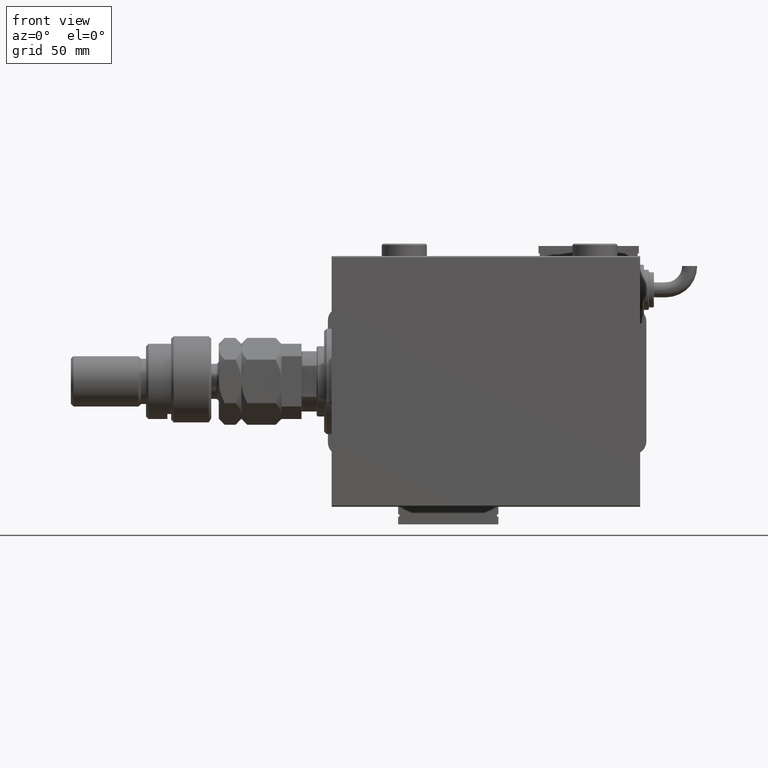
[diagram: clean part render]
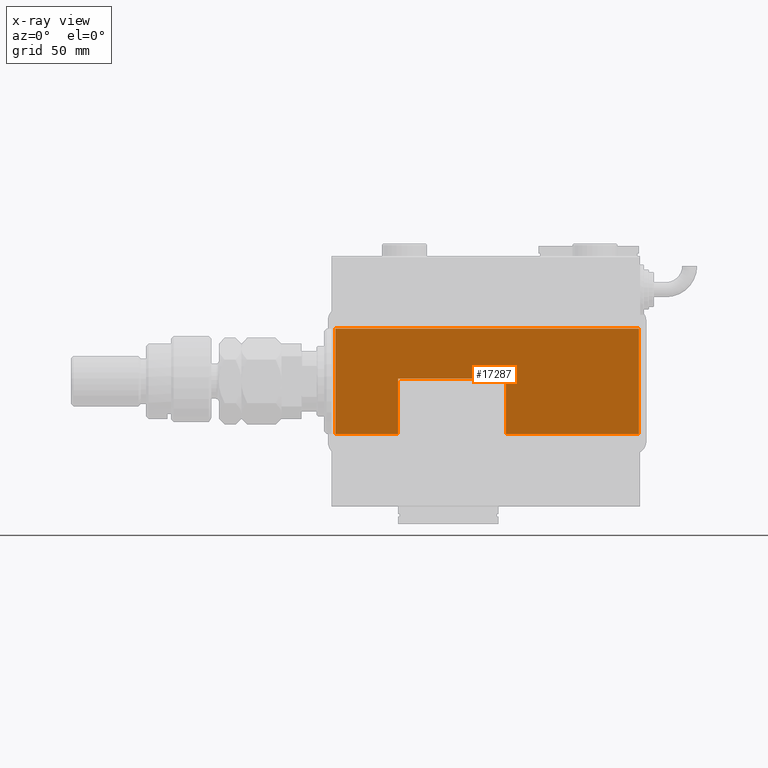
[diagram: x-ray — body ghosted, one internal face saturated and labeled with its STEP entity id]
A machine part, front view, then the same camera in x-ray: the body is ghosted and one INTERNAL B-rep face — a face not visible from any outside direction — is saturated and labeled: STEP entity #17287.
In plain terms, the highlighted planar face has unit normal (0, 1, -0).
Its self-contained STEP definition (entity closure, byte-faithful):
#1110 = CARTESIAN_POINT ( 'NONE',  ( -26.00000000000000000, 22.79999999999999716, 56.00000000000000711 ) ) ;
#1747 = LINE ( 'NONE', #1110, #33999 ) ;
#2328 = LINE ( 'NONE', #22364, #40220 ) ;
#3525 = ORIENTED_EDGE ( 'NONE', *, *, #46792, .T. ) ;
#5675 = CARTESIAN_POINT ( 'NONE',  ( 1.000000000000014655, 22.79999999999999716, 56.00000000000000711 ) ) ;
#7570 = CARTESIAN_POINT ( 'NONE',  ( -26.00000000000000000, 22.79999999999999716, 99.00000000000000000 ) ) ;
#7708 = VERTEX_POINT ( 'NONE', #53908 ) ;
#10760 = VECTOR ( 'NONE', #58310, 1000.000000000000000 ) ;
#13644 = EDGE_CURVE ( 'NONE', #7708, #24240, #47669, .T. ) ;
#14008 = FACE_OUTER_BOUND ( 'NONE', #53381, .T. ) ;
#14962 = DIRECTION ( 'NONE',  ( 0.000000000000000000, -0.000000000000000000, 1.000000000000000000 ) ) ;
#15379 = VECTOR ( 'NONE', #49432, 1000.000000000000000 ) ;
#15454 = VERTEX_POINT ( 'NONE', #55807 ) ;
#15479 = CARTESIAN_POINT ( 'NONE',  ( 20.99999999999999645, 22.79999999999999716, 124.0000000000000000 ) ) ;
#17253 = EDGE_CURVE ( 'NONE', #23508, #59615, #57989, .T. ) ;
#17287 = ADVANCED_FACE ( 'NONE', ( #14008 ), #33387, .F. ) ;
#18240 = EDGE_CURVE ( 'NONE', #48553, #59615, #36763, .T. ) ;
#18289 = LINE ( 'NONE', #38007, #52558 ) ;
#22364 = CARTESIAN_POINT ( 'NONE',  ( -20.99999999999999645, 22.79999999999999716, 0.000000000000000000 ) ) ;
#23508 = VERTEX_POINT ( 'NONE', #24184 ) ;
#23659 = VECTOR ( 'NONE', #27607, 1000.000000000000000 ) ;
#23834 = VECTOR ( 'NONE', #63164, 1000.000000000000000 ) ;
#24184 = CARTESIAN_POINT ( 'NONE',  ( -20.99999999999999645, 22.79999999999999716, 99.00000000000000000 ) ) ;
#24240 = VERTEX_POINT ( 'NONE', #48250 ) ;
#26604 = ORIENTED_EDGE ( 'NONE', *, *, #42989, .T. ) ;
#26935 = VECTOR ( 'NONE', #31586, 1000.000000000000000 ) ;
#27607 = DIRECTION ( 'NONE',  ( -1.000000000000000000, 0.000000000000000000, 0.000000000000000000 ) ) ;
#28938 = CARTESIAN_POINT ( 'NONE',  ( -20.99999999999999645, 22.79999999999999716, 124.0000000000000000 ) ) ;
#29498 = CARTESIAN_POINT ( 'NONE',  ( -20.99999999999999645, 22.79999999999999716, 0.000000000000000000 ) ) ;
#29687 = LINE ( 'NONE', #15479, #15379 ) ;
#30492 = VERTEX_POINT ( 'NONE', #58510 ) ;
#30824 = DIRECTION ( 'NONE',  ( -1.000000000000000000, 0.000000000000000000, 0.000000000000000000 ) ) ;
#31257 = CARTESIAN_POINT ( 'NONE',  ( 1.000000000000014655, 22.79999999999999716, 124.0000000000000000 ) ) ;
#31406 = DIRECTION ( 'NONE',  ( 0.000000000000000000, 0.000000000000000000, -1.000000000000000000 ) ) ;
#31586 = DIRECTION ( 'NONE',  ( 0.000000000000000000, -0.000000000000000000, 1.000000000000000000 ) ) ;
#32798 = ORIENTED_EDGE ( 'NONE', *, *, #17253, .T. ) ;
#33387 = PLANE ( 'NONE',  #36220 ) ;
#33711 = DIRECTION ( 'NONE',  ( 0.000000000000000000, 1.000000000000000000, 0.000000000000000000 ) ) ;
#33999 = VECTOR ( 'NONE', #30824, 1000.000000000000000 ) ;
#34339 = CARTESIAN_POINT ( 'NONE',  ( -26.00000000000000000, 22.79999999999999716, 124.0000000000000000 ) ) ;
#36220 = AXIS2_PLACEMENT_3D ( 'NONE', #34339, #33711, #14962 ) ;
#36763 = LINE ( 'NONE', #31257, #26935 ) ;
#38007 = CARTESIAN_POINT ( 'NONE',  ( -26.00000000000000000, 22.79999999999999716, 124.0000000000000000 ) ) ;
#40220 = VECTOR ( 'NONE', #31406, 1000.000000000000000 ) ;
#40464 = ORIENTED_EDGE ( 'NONE', *, *, #45009, .T. ) ;
#41063 = ORIENTED_EDGE ( 'NONE', *, *, #13644, .F. ) ;
#41594 = EDGE_CURVE ( 'NONE', #48500, #15454, #18289, .T. ) ;
#42376 = ORIENTED_EDGE ( 'NONE', *, *, #41594, .F. ) ;
#42989 = EDGE_CURVE ( 'NONE', #30492, #24240, #2328, .T. ) ;
#45009 = EDGE_CURVE ( 'NONE', #7708, #15454, #29687, .T. ) ;
#46220 = CARTESIAN_POINT ( 'NONE',  ( 1.000000000000014655, 22.79999999999999716, 99.00000000000000000 ) ) ;
#46792 = EDGE_CURVE ( 'NONE', #48553, #30492, #1747, .T. ) ;
#47669 = LINE ( 'NONE', #52200, #23659 ) ;
#47724 = DIRECTION ( 'NONE',  ( 1.000000000000000000, 0.000000000000000000, 0.000000000000000000 ) ) ;
#48250 = CARTESIAN_POINT ( 'NONE',  ( -20.99999999999999645, 22.79999999999999716, 3.000000000000002665 ) ) ;
#48500 = VERTEX_POINT ( 'NONE', #28938 ) ;
#48553 = VERTEX_POINT ( 'NONE', #5675 ) ;
#49432 = DIRECTION ( 'NONE',  ( -0.000000000000000000, -0.000000000000000000, 1.000000000000000000 ) ) ;
#52200 = CARTESIAN_POINT ( 'NONE',  ( -26.00000000000000000, 22.79999999999999716, 3.000000000000002665 ) ) ;
#52558 = VECTOR ( 'NONE', #47724, 1000.000000000000000 ) ;
#53381 = EDGE_LOOP ( 'NONE', ( #53437, #3525, #26604, #41063, #40464, #42376, #54522, #32798 ) ) ;
#53437 = ORIENTED_EDGE ( 'NONE', *, *, #18240, .F. ) ;
#53908 = CARTESIAN_POINT ( 'NONE',  ( 20.99999999999998579, 22.79999999999999716, 3.000000000000002665 ) ) ;
#54093 = LINE ( 'NONE', #29498, #10760 ) ;
#54522 = ORIENTED_EDGE ( 'NONE', *, *, #57951, .T. ) ;
#55807 = CARTESIAN_POINT ( 'NONE',  ( 20.99999999999998579, 22.79999999999999716, 124.0000000000000000 ) ) ;
#57951 = EDGE_CURVE ( 'NONE', #48500, #23508, #54093, .T. ) ;
#57989 = LINE ( 'NONE', #7570, #23834 ) ;
#58310 = DIRECTION ( 'NONE',  ( 0.000000000000000000, 0.000000000000000000, -1.000000000000000000 ) ) ;
#58510 = CARTESIAN_POINT ( 'NONE',  ( -20.99999999999999645, 22.79999999999999716, 56.00000000000000711 ) ) ;
#59615 = VERTEX_POINT ( 'NONE', #46220 ) ;
#63164 = DIRECTION ( 'NONE',  ( 1.000000000000000000, -0.000000000000000000, 0.000000000000000000 ) ) ;